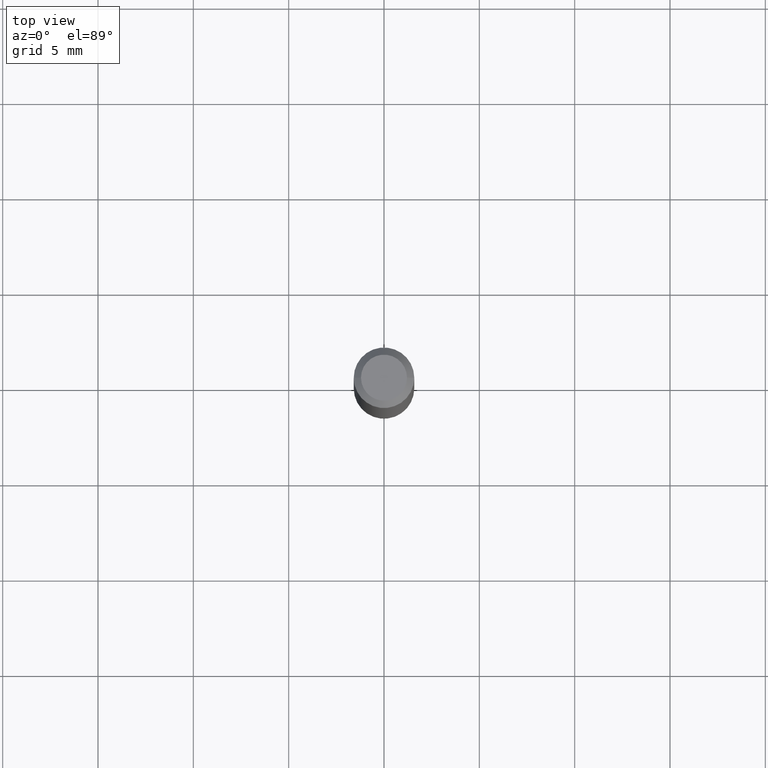
[diagram: clean part render]
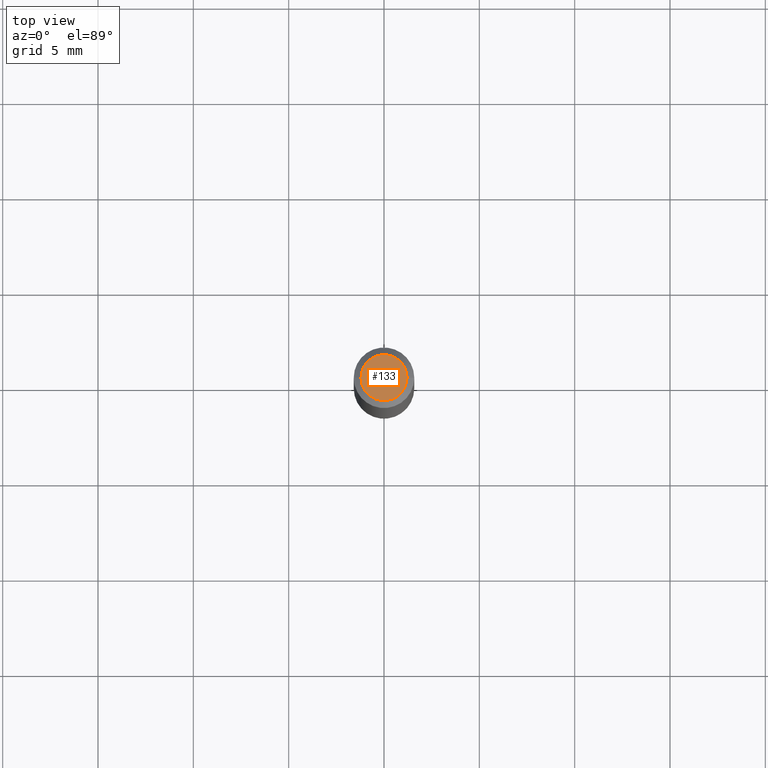
[diagram: same view with one face highlighted and labeled with its STEP entity id]
A machine part, top view. The second image highlights one B-rep face of the part: STEP entity #133.
In plain terms, the highlighted planar face has unit normal (0, -0, -1).
Its self-contained STEP definition (entity closure, byte-faithful):
#50 = PLANE ( 'NONE',  #330 ) ;
#81 = AXIS2_PLACEMENT_3D ( 'NONE', #508, #110, #309 ) ;
#83 = DIRECTION ( 'NONE',  ( -1.000000000000000000, 6.982962677686265922E-15, -4.876176775795935793E-29 ) ) ;
#110 = DIRECTION ( 'NONE',  ( -2.445468806185136597E-29, 3.491481338843145583E-15, 1.000000000000000000 ) ) ;
#126 = CARTESIAN_POINT ( 'NONE',  ( -6.680649051745406845E-45, 9.538196290434862081E-31, 2.731847993664263218E-16 ) ) ;
#133 = ADVANCED_FACE ( 'NONE', ( #209 ), #50, .F. ) ;
#157 = CIRCLE ( 'NONE', #81, 0.04750000000000000749 ) ;
#185 = ORIENTED_EDGE ( 'NONE', *, *, #231, .T. ) ;
#191 = EDGE_LOOP ( 'NONE', ( #232, #185 ) ) ;
#209 = FACE_OUTER_BOUND ( 'NONE', #191, .T. ) ;
#231 = EDGE_CURVE ( 'NONE', #491, #273, #487, .T. ) ;
#232 = ORIENTED_EDGE ( 'NONE', *, *, #447, .T. ) ;
#273 = VERTEX_POINT ( 'NONE', #379 ) ;
#300 = DIRECTION ( 'NONE',  ( -2.445468806185136597E-29, 3.491481338843145583E-15, 1.000000000000000000 ) ) ;
#309 = DIRECTION ( 'NONE',  ( 1.000000000000000000, -6.982962677686266711E-15, 4.852736867747365086E-29 ) ) ;
#323 = DIRECTION ( 'NONE',  ( 2.438088387897960049E-29, -3.491481338843145188E-15, -1.000000000000000000 ) ) ;
#330 = AXIS2_PLACEMENT_3D ( 'NONE', #448, #323, #83 ) ;
#379 = CARTESIAN_POINT ( 'NONE',  ( -0.04750000000000000749, 3.578768372314221353E-16, 2.731847993664239060E-16 ) ) ;
#409 = CARTESIAN_POINT ( 'NONE',  ( 0.04750000000000000749, -4.035134999187568762E-16, 2.731847993664288856E-16 ) ) ;
#416 = AXIS2_PLACEMENT_3D ( 'NONE', #126, #300, #501 ) ;
#447 = EDGE_CURVE ( 'NONE', #273, #491, #157, .T. ) ;
#448 = CARTESIAN_POINT ( 'NONE',  ( 3.316907271900976589E-16, 0.04750000000000000749, -2.925296391183627249E-17 ) ) ;
#487 = CIRCLE ( 'NONE', #416, 0.04750000000000000749 ) ;
#491 = VERTEX_POINT ( 'NONE', #409 ) ;
#501 = DIRECTION ( 'NONE',  ( 1.000000000000000000, -6.982962677686266711E-15, 4.852736867747365086E-29 ) ) ;
#508 = CARTESIAN_POINT ( 'NONE',  ( -6.680649051745406845E-45, 9.538196290434862081E-31, 2.731847993664263218E-16 ) ) ;